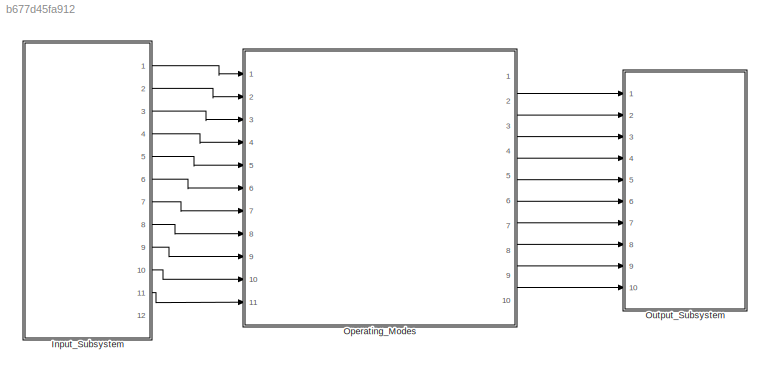
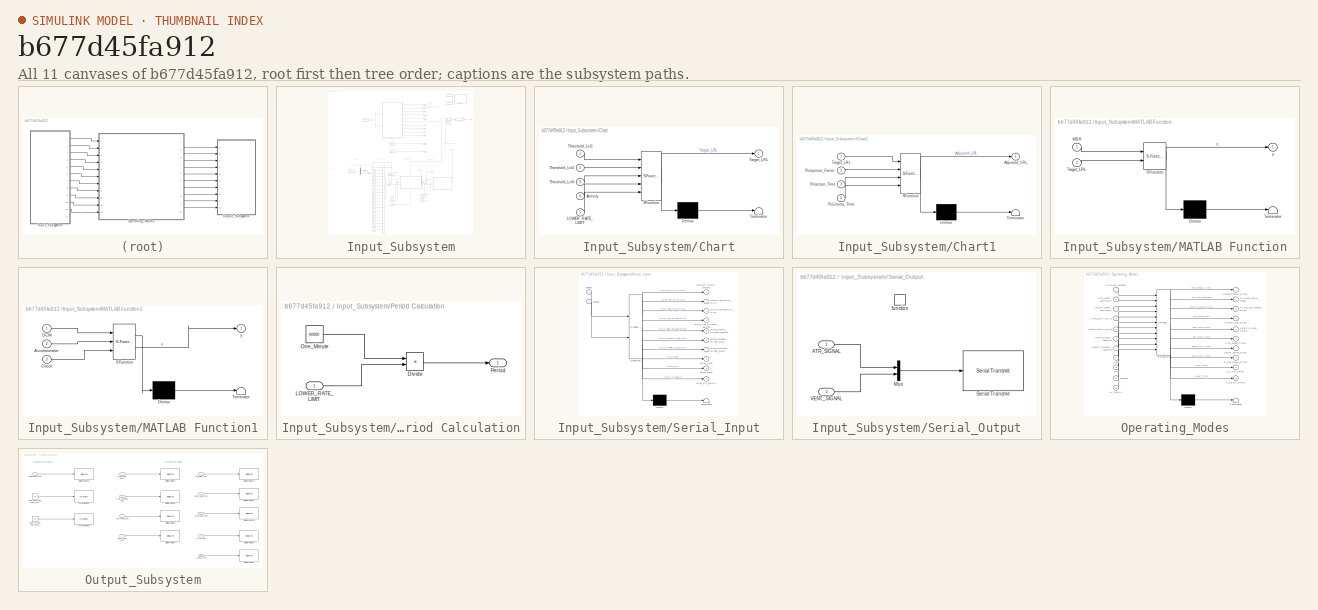
[diagram: thumbnail index - all 11 canvases of the model, root first then tree order]
MODEL slx_b677d45fa912
KIND model
CONFIG AbsTol = auto
CONFIG EnableMultiTasking = on
CONFIG FixedStep = 1e-3
CONFIG MaxStep = auto
CONFIG MinStep = auto
CONFIG RelTol = 1e-3
CONFIG SampleTimeConstraint = Unconstrained
CONFIG Solver = FixedStepAuto
CONFIG SolverName = FixedStepAuto
CONFIG StartTime = 0.0
CONFIG StopTime = 10.0
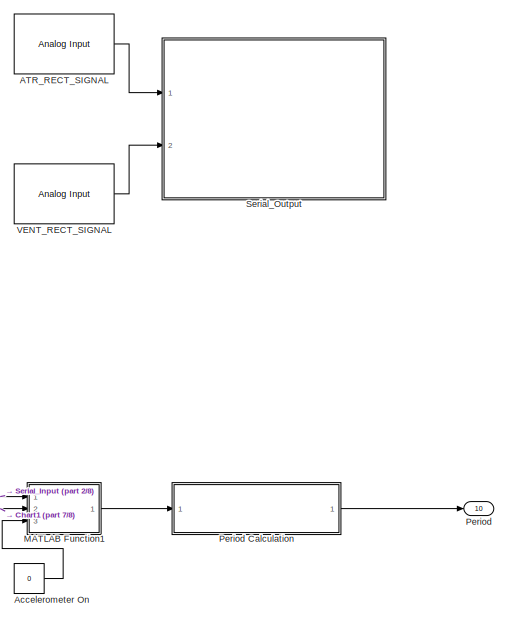
[diagram: Input_Subsystem - part 1/8, top right region]
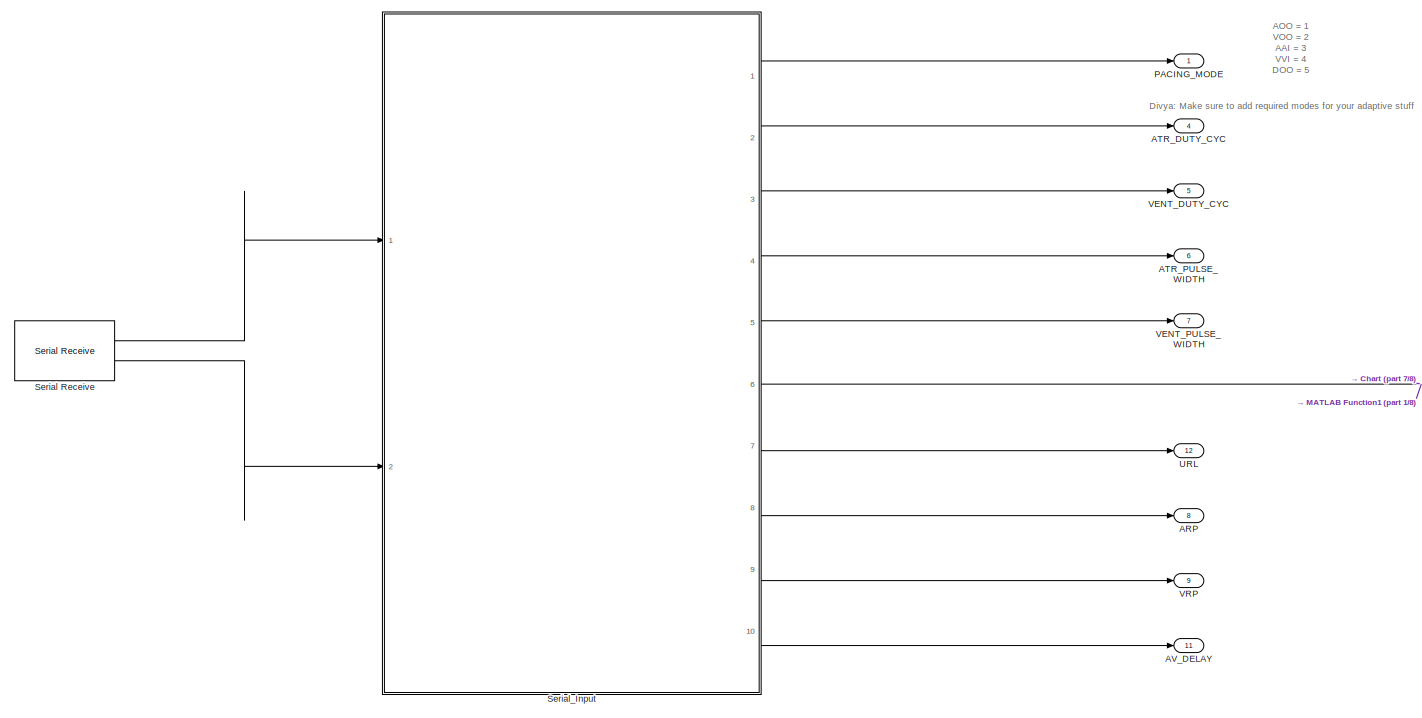
[diagram: Input_Subsystem - part 2/8, top center region]
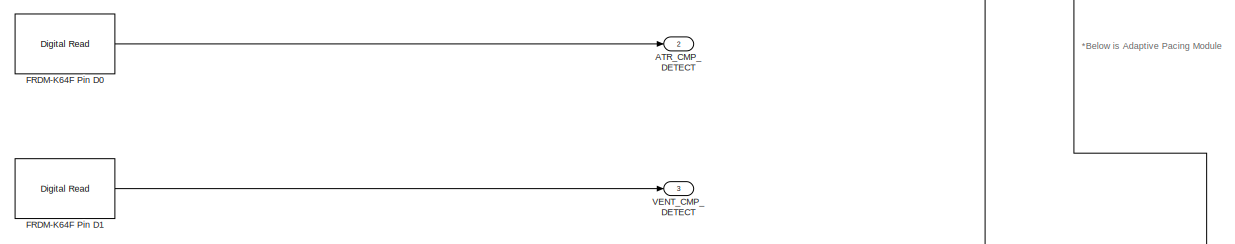
[diagram: Input_Subsystem - part 3/8, central region]
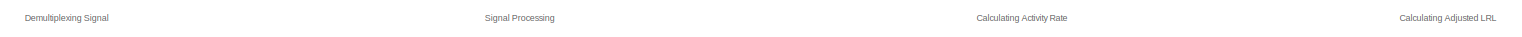
[diagram: Input_Subsystem - part 4/8, central region]
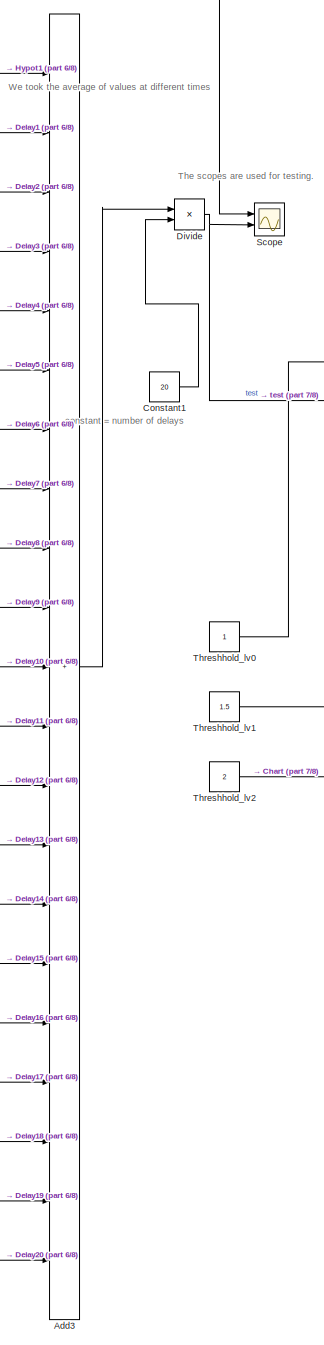
[diagram: Input_Subsystem - part 5/8, bottom center region]
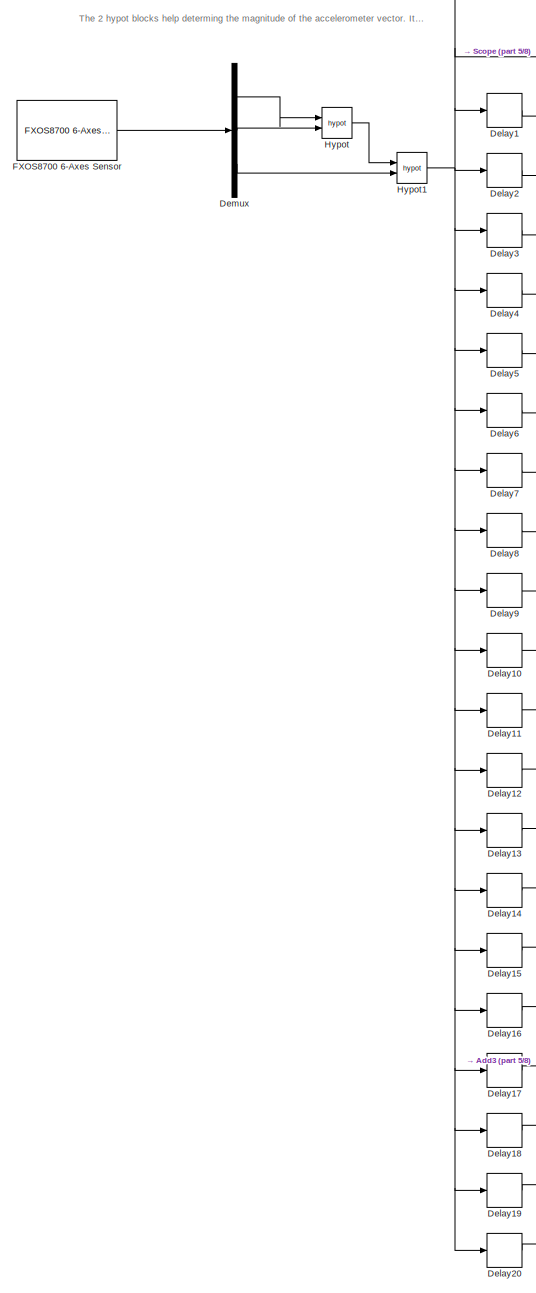
[diagram: Input_Subsystem - part 6/8, bottom left region]
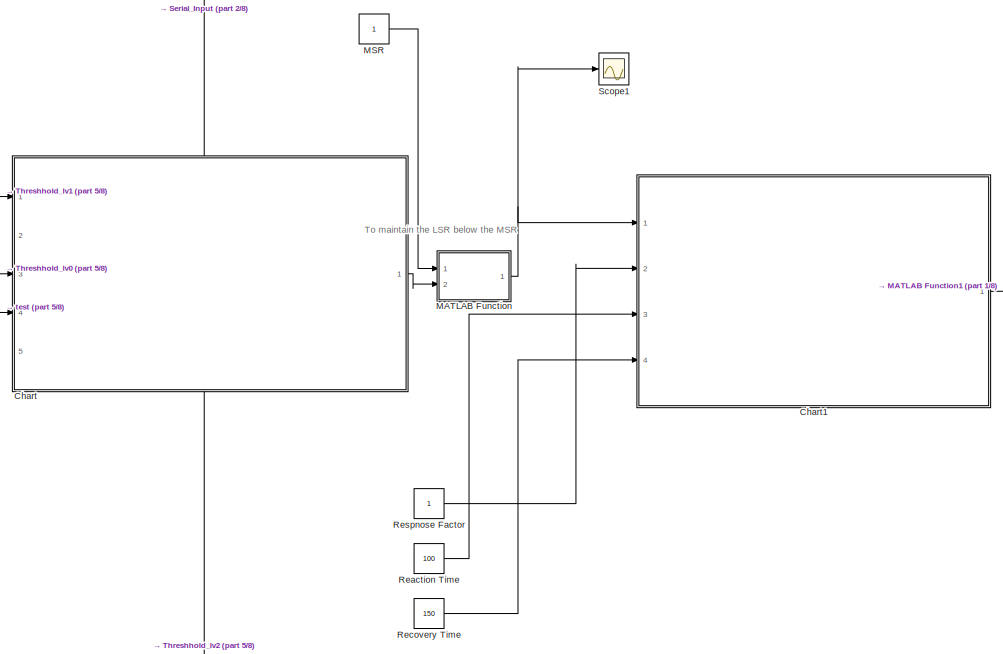
[diagram: Input_Subsystem - part 7/8, middle right region]
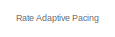
[diagram: Input_Subsystem - part 8/8, middle left region]
BLOCK [SubSystem] Input_Subsystem
  Ports = [0, 12]
  RequestExecContextInheritance = off
BLOCK [Outport] Input_Subsystem/ARP
  Port = 8
BLOCK [Outport] Input_Subsystem/ATR_CMP_DETECT
  Port = 2
BLOCK [Outport] Input_Subsystem/ATR_DUTY_CYC
  Port = 4
BLOCK [Outport] Input_Subsystem/ATR_PULSE_WIDTH 
  Port = 6
BLOCK [Reference] Input_Subsystem/ATR_RECT_SIGNAL  REF=frdmk64flib/Analog Input
  Ports = [0, 1]
  SourceBlock = frdmk64flib/Analog Input
  SourceProductBaseCode = EC_FRDM_K64F
  SourceType = freedomk64f.AnalogInput
BLOCK [Outport] Input_Subsystem/AV_DELAY
  Port = 11
BLOCK [Constant] Input_Subsystem/Accelerometer On
  Value = 0
BLOCK [Sum] Input_Subsystem/Add3
  IconShape = rectangular
  Inputs = +++++++++++++++++++++
  Ports = [21, 1]
BLOCK [SubSystem] Input_Subsystem/Chart
  ErrorFcn = Stateflow.Translate.translate
  PermitHierarchicalResolution = ExplicitOnly
  PortSchema = {"entries":[{"content":{"sides":[{"content":{"connectorIds":["In4","In3","In1"]},"type":"ConnectorPlacement.EquallySpacedRectSide","uuid":"4cb2c1a3-7832-42b2-9b4d-c3890044bf68"},{"content":{"connectorIds":["Out1"],"side":"RIGHT"},"type":"ConnectorPlacement.EquallySpacedRectSide","uuid":"b75defaf-0423-434a-ad80-75ff250baeb0"},{"content":{"connectorIds":["In5"],"side":"TOP"},"type":"ConnectorPlaceme...<+408ch>
  Ports = [5, 1]
  RequestExecContextInheritance = off
  SFBlockType = Chart
  TreatAsAtomicUnit = on
BLOCK [Demux] Input_Subsystem/Chart/ Demux 
  Outputs = 1
  Ports = [1, 1]
BLOCK [S-Function] Input_Subsystem/Chart/ SFunction 
  EnableBusSupport = on
  FunctionName = sf_sfun
  PortCounts = [5 2]
  Ports = [5, 2]
  SFcnIsStateOwnerBlock = off
  SFunctionDeploymentMode = off
  Tag = Stateflow S-Function 2
BLOCK [Terminator] Input_Subsystem/Chart/ Terminator 
BLOCK [Inport] Input_Subsystem/Chart/Activity
  Port = 4
BLOCK [Inport] Input_Subsystem/Chart/LOWER_RATE_LIMIT
  Port = 5
BLOCK [Outport] Input_Subsystem/Chart/Target_LRL
BLOCK [Inport] Input_Subsystem/Chart/Threshold_Lvl0
  Port = 3
BLOCK [Inport] Input_Subsystem/Chart/Threshold_Lvl1
BLOCK [Inport] Input_Subsystem/Chart/Threshold_Lvl2
  Port = 2
BLOCK [SubSystem] Input_Subsystem/Chart1
  ErrorFcn = Stateflow.Translate.translate
  PermitHierarchicalResolution = ExplicitOnly
  Ports = [4, 1]
  RequestExecContextInheritance = off
  SFBlockType = Chart
  TreatAsAtomicUnit = on
BLOCK [Demux] Input_Subsystem/Chart1/ Demux 
  Outputs = 1
  Ports = [1, 1]
BLOCK [S-Function] Input_Subsystem/Chart1/ SFunction 
  EnableBusSupport = on
  FunctionName = sf_sfun
  PortCounts = [4 2]
  Ports = [4, 2]
  SFcnIsStateOwnerBlock = off
  SFunctionDeploymentMode = off
  Tag = Stateflow S-Function 4
BLOCK [Terminator] Input_Subsystem/Chart1/ Terminator 
BLOCK [Outport] Input_Subsystem/Chart1/Adjusted_LRL
BLOCK [Inport] Input_Subsystem/Chart1/Reaction_Time
  Port = 3
BLOCK [Inport] Input_Subsystem/Chart1/Recovery_Time
  Port = 4
BLOCK [Inport] Input_Subsystem/Chart1/Response_Factor
  Port = 2
BLOCK [Inport] Input_Subsystem/Chart1/Target_LRL
BLOCK [Constant] Input_Subsystem/Constant1
  Value = 20
BLOCK [Delay] Input_Subsystem/Delay1
  DelayLength = 1
  InputPortMap = u0
  Ports = [1, 1]
BLOCK [Delay] Input_Subsystem/Delay10
  DelayLength = 10
  InputPortMap = u0
  Ports = [1, 1]
BLOCK [Delay] Input_Subsystem/Delay11
  DelayLength = 11
  InputPortMap = u0
  Ports = [1, 1]
BLOCK [Delay] Input_Subsystem/Delay12
  DelayLength = 12
  InputPortMap = u0
  Ports = [1, 1]
BLOCK [Delay] Input_Subsystem/Delay13
  DelayLength = 13
  InputPortMap = u0
  Ports = [1, 1]
BLOCK [Delay] Input_Subsystem/Delay14
  DelayLength = 14
  InputPortMap = u0
  Ports = [1, 1]
BLOCK [Delay] Input_Subsystem/Delay15
  DelayLength = 15
  InputPortMap = u0
  Ports = [1, 1]
BLOCK [Delay] Input_Subsystem/Delay16
  DelayLength = 16
  InputPortMap = u0
  Ports = [1, 1]
BLOCK [Delay] Input_Subsystem/Delay17
  DelayLength = 17
  InputPortMap = u0
  Ports = [1, 1]
BLOCK [Delay] Input_Subsystem/Delay18
  DelayLength = 18
  InputPortMap = u0
  Ports = [1, 1]
BLOCK [Delay] Input_Subsystem/Delay19
  DelayLength = 19
  InputPortMap = u0
  Ports = [1, 1]
BLOCK [Delay] Input_Subsystem/Delay2
  InputPortMap = u0
  Ports = [1, 1]
BLOCK [Delay] Input_Subsystem/Delay20
  DelayLength = 20
  InputPortMap = u0
  Ports = [1, 1]
BLOCK [Delay] Input_Subsystem/Delay3
  DelayLength = 3
  InputPortMap = u0
  Ports = [1, 1]
BLOCK [Delay] Input_Subsystem/Delay4
  DelayLength = 4
  InputPortMap = u0
  Ports = [1, 1]
BLOCK [Delay] Input_Subsystem/Delay5
  DelayLength = 5
  InputPortMap = u0
  Ports = [1, 1]
BLOCK [Delay] Input_Subsystem/Delay6
  DelayLength = 6
  InputPortMap = u0
  Ports = [1, 1]
BLOCK [Delay] Input_Subsystem/Delay7
  DelayLength = 7
  InputPortMap = u0
  Ports = [1, 1]
BLOCK [Delay] Input_Subsystem/Delay8
  DelayLength = 8
  InputPortMap = u0
  Ports = [1, 1]
BLOCK [Delay] Input_Subsystem/Delay9
  DelayLength = 9
  InputPortMap = u0
  Ports = [1, 1]
BLOCK [Demux] Input_Subsystem/Demux
  Outputs = 3
  Ports = [1, 3]
BLOCK [Product] Input_Subsystem/Divide
  Inputs = */
  Ports = [2, 1]
BLOCK [Reference] Input_Subsystem/FRDM-K64F Pin D0  REF=frdmk64flib/Digital Read
  Ports = [0, 1]
  SourceBlock = frdmk64flib/Digital Read
  SourceProductBaseCode = EC_FRDM_K64F
  SourceType = freedomk64f.DigitalRead
BLOCK [Reference] Input_Subsystem/FRDM-K64F Pin D1  REF=frdmk64flib/Digital Read
  Ports = [0, 1]
  SourceBlock = frdmk64flib/Digital Read
  SourceProductBaseCode = EC_FRDM_K64F
  SourceType = freedomk64f.DigitalRead
BLOCK [Reference] Input_Subsystem/FXOS8700 6-Axes Sensor  REF=frdmk64flib/FXOS8700 6-Axes Sensor
  Ports = [0, 1]
  SourceBlock = frdmk64flib/FXOS8700 6-Axes Sensor
  SourceProductBaseCode = EC_FRDM_K64F
  SourceType = freedomk64f.fxos8700
BLOCK [Math] Input_Subsystem/Hypot
  Operator = hypot
  Ports = [2, 1]
BLOCK [Math] Input_Subsystem/Hypot1
  Operator = hypot
  Ports = [2, 1]
BLOCK [SubSystem] Input_Subsystem/MATLAB Function
  ErrorFcn = Stateflow.Translate.translate
  PermitHierarchicalResolution = ExplicitOnly
  Ports = [2, 1]
  RequestExecContextInheritance = off
  SFBlockType = MATLAB Function
  TreatAsAtomicUnit = on
BLOCK [Demux] Input_Subsystem/MATLAB Function/ Demux 
  Outputs = 1
  Ports = [1, 1]
BLOCK [S-Function] Input_Subsystem/MATLAB Function/ SFunction 
  EnableBusSupport = off
  FunctionName = sf_sfun
  PortCounts = [2 2]
  Ports = [2, 2]
  SFcnIsStateOwnerBlock = off
  SFunctionDeploymentMode = off
  Tag = Stateflow S-Function 5
BLOCK [Terminator] Input_Subsystem/MATLAB Function/ Terminator 
BLOCK [Inport] Input_Subsystem/MATLAB Function/MSR
BLOCK [Inport] Input_Subsystem/MATLAB Function/Target_LRL
  Port = 2
BLOCK [Outport] Input_Subsystem/MATLAB Function/y
BLOCK [SubSystem] Input_Subsystem/MATLAB Function1
  ErrorFcn = Stateflow.Translate.translate
  PermitHierarchicalResolution = ExplicitOnly
  Ports = [3, 1]
  RequestExecContextInheritance = off
  SFBlockType = MATLAB Function
  TreatAsAtomicUnit = on
BLOCK [Demux] Input_Subsystem/MATLAB Function1/ Demux 
  Outputs = 1
  Ports = [1, 1]
BLOCK [S-Function] Input_Subsystem/MATLAB Function1/ SFunction 
  EnableBusSupport = off
  FunctionName = sf_sfun
  PortCounts = [3 2]
  Ports = [3, 2]
  SFcnIsStateOwnerBlock = off
  SFunctionDeploymentMode = off
  Tag = Stateflow S-Function 6
BLOCK [Terminator] Input_Subsystem/MATLAB Function1/ Terminator 
BLOCK [Inport] Input_Subsystem/MATLAB Function1/Accelerometer
  Port = 2
BLOCK [Inport] Input_Subsystem/MATLAB Function1/Check
  Port = 3
BLOCK [Inport] Input_Subsystem/MATLAB Function1/DCM
BLOCK [Outport] Input_Subsystem/MATLAB Function1/y
BLOCK [Constant] Input_Subsystem/MSR
BLOCK [Outport] Input_Subsystem/PACING_MODE
BLOCK [Outport] Input_Subsystem/Period 
  Port = 10
BLOCK [SubSystem] Input_Subsystem/Period Calculation
  Ports = [1, 1]
  RequestExecContextInheritance = off
BLOCK [Product] Input_Subsystem/Period Calculation/Divide
  Inputs = */
  Ports = [2, 1]
BLOCK [Inport] Input_Subsystem/Period Calculation/LOWER_RATE_LIMIT
BLOCK [Constant] Input_Subsystem/Period Calculation/One_Minute
  Value = 60000
BLOCK [Outport] Input_Subsystem/Period Calculation/Period
BLOCK [Constant] Input_Subsystem/Reaction Time
  Value = 100
BLOCK [Constant] Input_Subsystem/Recovery Time
  Value = 150
BLOCK [Constant] Input_Subsystem/Respnose Factor
BLOCK [Scope] Input_Subsystem/Scope
  Floating = off
  NumInputPorts = 2
  Ports = [2]
  ScopeSpecificationString = Simulink.scopes.TimeScopeBlockCfg('CurrentConfiguration', extmgr.ConfigurationSet(extmgr.Configuration('Core','General UI',true),extmgr.Configuration('Core','Source UI',true),extmgr.Configuration('Sources','WiredSimulink',true),extmgr.Configuration('Visuals','Time Domain',true,'SerializedDisplays',{struct('MinYLimReal','0.04721','MaxYLimReal','2.9717','YLabelReal','','MinYLimMag','0.04721','MaxYLi...<+1399ch>
BLOCK [Scope] Input_Subsystem/Scope1
  Floating = off
  NumInputPorts = 1
  Ports = [1]
  ScopeSpecificationString = Simulink.scopes.TimeScopeBlockCfg('CurrentConfiguration', extmgr.ConfigurationSet(extmgr.Configuration('Core','General UI',true),extmgr.Configuration('Core','Source UI',true),extmgr.Configuration('Sources','WiredSimulink',true,'DataLoggingVariableName','ScopeData1'),extmgr.Configuration('Visuals','Time Domain',true,'SerializedDisplays',{struct('MinYLimReal','-8.75','MaxYLimReal','78.75','YLabelRea...<+1407ch>
BLOCK [Reference] Input_Subsystem/Serial Receive  REF=frdmk64flib/Serial Receive
  Ports = [0, 2]
  SourceBlock = frdmk64flib/Serial Receive
  SourceProductBaseCode = EC_FRDM_K64F
  SourceType = freedomk64f.SCIRead
BLOCK [SubSystem] Input_Subsystem/Serial_Input
  ErrorFcn = Stateflow.Translate.translate
  PermitHierarchicalResolution = ExplicitOnly
  Ports = [2, 10]
  RequestExecContextInheritance = off
  SFBlockType = Chart
  TreatAsAtomicUnit = on
BLOCK [Demux] Input_Subsystem/Serial_Input/ Demux 
  Outputs = 1
  Ports = [1, 1]
BLOCK [S-Function] Input_Subsystem/Serial_Input/ SFunction 
  EnableBusSupport = off
  FunctionName = sf_sfun
  PortCounts = [2 11]
  Ports = [2, 11]
  SFcnIsStateOwnerBlock = off
  SFunctionDeploymentMode = off
  Tag = Stateflow S-Function 1
BLOCK [Terminator] Input_Subsystem/Serial_Input/ Terminator 
BLOCK [Outport] Input_Subsystem/Serial_Input/DCM_ARP
  Port = 8
BLOCK [Outport] Input_Subsystem/Serial_Input/DCM_ATR_DUTY_CYC
  Port = 2
BLOCK [Outport] Input_Subsystem/Serial_Input/DCM_ATR_PULSE_WIDTH
  Port = 4
BLOCK [Outport] Input_Subsystem/Serial_Input/DCM_AV_DELAY
  Port = 10
BLOCK [Outport] Input_Subsystem/Serial_Input/DCM_LOWER_RATE_LIMIT
  Port = 6
BLOCK [Outport] Input_Subsystem/Serial_Input/DCM_PACING_MODE
BLOCK [Outport] Input_Subsystem/Serial_Input/DCM_UPPER_RATE_LIMIT
  Port = 7
BLOCK [Outport] Input_Subsystem/Serial_Input/DCM_VENT_DUTY_CYC
  Port = 3
BLOCK [Outport] Input_Subsystem/Serial_Input/DCM_VENT_PULSE_WIDTH
  Port = 5
BLOCK [Outport] Input_Subsystem/Serial_Input/DCM_VRP
  Port = 9
BLOCK [Inport] Input_Subsystem/Serial_Input/rxdata
BLOCK [Inport] Input_Subsystem/Serial_Input/status
  Port = 2
BLOCK [SubSystem] Input_Subsystem/Serial_Output
  Ports = [2, 0, 0, 1]
  RequestExecContextInheritance = off
BLOCK [Inport] Input_Subsystem/Serial_Output/ATR_SIGNAL
BLOCK [Mux] Input_Subsystem/Serial_Output/Mux
  DisplayOption = bar
  Inputs = 2
  Ports = [2, 1]
BLOCK [Reference] Input_Subsystem/Serial_Output/Serial Transmit  REF=frdmk64flib/Serial Transmit
  Ports = [1]
  SourceBlock = frdmk64flib/Serial Transmit
  SourceProductBaseCode = EC_FRDM_K64F
  SourceType = freedomk64f.SCIWrite
BLOCK [Inport] Input_Subsystem/Serial_Output/VENT_SIGNAL
  Port = 2
BLOCK [TriggerPort] Input_Subsystem/Serial_Output/function
  FunctionName = send_params
  IsSimulinkFunction = on
  Ports = []
  StatesWhenEnabling = held
  TriggerType = function-call
  VariantControl = Variant
BLOCK [Constant] Input_Subsystem/Threshhold_lv0
  OutDataTypeStr = double
BLOCK [Constant] Input_Subsystem/Threshhold_lv1
  Value = 1.5
BLOCK [Constant] Input_Subsystem/Threshhold_lv2
  Value = 2
BLOCK [Outport] Input_Subsystem/URL
  Port = 12
BLOCK [Outport] Input_Subsystem/VENT_CMP_DETECT
  Port = 3
BLOCK [Outport] Input_Subsystem/VENT_DUTY_CYC
  Port = 5
BLOCK [Outport] Input_Subsystem/VENT_PULSE_WIDTH 
  Port = 7
BLOCK [Reference] Input_Subsystem/VENT_RECT_SIGNAL  REF=frdmk64flib/Analog Input
  Ports = [0, 1]
  SourceBlock = frdmk64flib/Analog Input
  SourceProductBaseCode = EC_FRDM_K64F
  SourceType = freedomk64f.AnalogInput
BLOCK [Outport] Input_Subsystem/VRP
  Port = 9
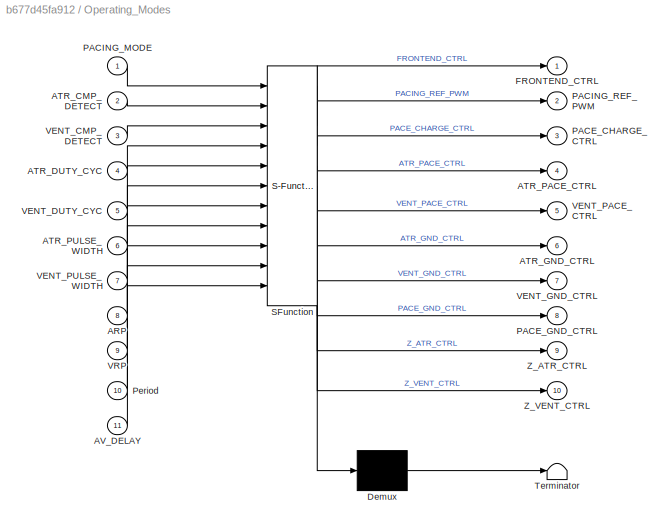
BLOCK [SubSystem] Operating_Modes
  ErrorFcn = Stateflow.Translate.translate
  PermitHierarchicalResolution = ExplicitOnly
  Ports = [11, 10]
  RequestExecContextInheritance = off
  SFBlockType = Chart
  TreatAsAtomicUnit = on
BLOCK [Demux] Operating_Modes/ Demux 
  Outputs = 1
  Ports = [1, 1]
BLOCK [S-Function] Operating_Modes/ SFunction 
  EnableBusSupport = on
  FunctionName = sf_sfun
  PortCounts = [11 11]
  Ports = [11, 11]
  SFcnIsStateOwnerBlock = off
  SFunctionDeploymentMode = off
  Tag = Stateflow S-Function 3
BLOCK [Terminator] Operating_Modes/ Terminator 
BLOCK [Inport] Operating_Modes/ARP
  Port = 8
BLOCK [Inport] Operating_Modes/ATR_CMP_DETECT
  Port = 2
BLOCK [Inport] Operating_Modes/ATR_DUTY_CYC
  Port = 4
BLOCK [Outport] Operating_Modes/ATR_GND_CTRL
  Port = 6
BLOCK [Outport] Operating_Modes/ATR_PACE_CTRL
  Port = 4
BLOCK [Inport] Operating_Modes/ATR_PULSE_WIDTH
  Port = 6
BLOCK [Inport] Operating_Modes/AV_DELAY
  Port = 11
BLOCK [Outport] Operating_Modes/FRONTEND_CTRL
BLOCK [Outport] Operating_Modes/PACE_CHARGE_CTRL
  Port = 3
BLOCK [Outport] Operating_Modes/PACE_GND_CTRL
  Port = 8
BLOCK [Inport] Operating_Modes/PACING_MODE
BLOCK [Outport] Operating_Modes/PACING_REF_PWM
  Port = 2
BLOCK [Inport] Operating_Modes/Period
  Port = 10
BLOCK [Inport] Operating_Modes/VENT_CMP_DETECT
  Port = 3
BLOCK [Inport] Operating_Modes/VENT_DUTY_CYC
  Port = 5
BLOCK [Outport] Operating_Modes/VENT_GND_CTRL
  Port = 7
BLOCK [Outport] Operating_Modes/VENT_PACE_CTRL
  Port = 5
BLOCK [Inport] Operating_Modes/VENT_PULSE_WIDTH
  Port = 7
BLOCK [Inport] Operating_Modes/VRP
  Port = 9
BLOCK [Outport] Operating_Modes/Z_ATR_CTRL
  Port = 9
BLOCK [Outport] Operating_Modes/Z_VENT_CTRL
  Port = 10
BLOCK [SubSystem] Output_Subsystem
  Ports = [10]
  RequestExecContextInheritance = off
BLOCK [Inport] Output_Subsystem/ATR_GND_CTRL
  Port = 6
BLOCK [Inport] Output_Subsystem/ATR_PACE_CTRL
  Port = 4
BLOCK [Constant] Output_Subsystem/DCM_ATR_CMP_REF_PWM
  Value = 50
BLOCK [Constant] Output_Subsystem/DCM_VENT_CMP_REF_PWM
  Value = 50
BLOCK [Reference] Output_Subsystem/Digital Write to D10  REF=frdmk64flib/Digital Write
  Ports = [1]
  SourceBlock = frdmk64flib/Digital Write
  SourceProductBaseCode = EC_FRDM_K64F
  SourceType = freedomk64f.DigitalWrite
BLOCK [Reference] Output_Subsystem/Digital Write to D11  REF=frdmk64flib/Digital Write
  Ports = [1]
  SourceBlock = frdmk64flib/Digital Write
  SourceProductBaseCode = EC_FRDM_K64F
  SourceType = freedomk64f.DigitalWrite
BLOCK [Reference] Output_Subsystem/Digital Write to D12  REF=frdmk64flib/Digital Write
  Ports = [1]
  SourceBlock = frdmk64flib/Digital Write
  SourceProductBaseCode = EC_FRDM_K64F
  SourceType = freedomk64f.DigitalWrite
BLOCK [Reference] Output_Subsystem/Digital Write to D13  REF=frdmk64flib/Digital Write
  Ports = [1]
  SourceBlock = frdmk64flib/Digital Write
  SourceProductBaseCode = EC_FRDM_K64F
  SourceType = freedomk64f.DigitalWrite
BLOCK [Reference] Output_Subsystem/Digital Write to D2  REF=frdmk64flib/Digital Write
  Ports = [1]
  SourceBlock = frdmk64flib/Digital Write
  SourceProductBaseCode = EC_FRDM_K64F
  SourceType = freedomk64f.DigitalWrite
BLOCK [Reference] Output_Subsystem/Digital Write to D4  REF=frdmk64flib/Digital Write
  Ports = [1]
  SourceBlock = frdmk64flib/Digital Write
  SourceProductBaseCode = EC_FRDM_K64F
  SourceType = freedomk64f.DigitalWrite
BLOCK [Reference] Output_Subsystem/Digital Write to D5  REF=frdmk64flib/Digital Write
  Ports = [1]
  SourceBlock = frdmk64flib/Digital Write
  SourceProductBaseCode = EC_FRDM_K64F
  SourceType = freedomk64f.DigitalWrite
BLOCK [Reference] Output_Subsystem/Digital Write to D7  REF=frdmk64flib/Digital Write
  Ports = [1]
  SourceBlock = frdmk64flib/Digital Write
  SourceProductBaseCode = EC_FRDM_K64F
  SourceType = freedomk64f.DigitalWrite
BLOCK [Reference] Output_Subsystem/Digital Write to D8  REF=frdmk64flib/Digital Write
  Ports = [1]
  SourceBlock = frdmk64flib/Digital Write
  SourceProductBaseCode = EC_FRDM_K64F
  SourceType = freedomk64f.DigitalWrite
BLOCK [Reference] Output_Subsystem/Digital Write to D9  REF=frdmk64flib/Digital Write
  Ports = [1]
  SourceBlock = frdmk64flib/Digital Write
  SourceProductBaseCode = EC_FRDM_K64F
  SourceType = freedomk64f.DigitalWrite
BLOCK [Inport] Output_Subsystem/FRONTEND_CTRL
BLOCK [Inport] Output_Subsystem/PACE_CHARGE_CTRL
  Port = 3
BLOCK [Inport] Output_Subsystem/PACE_GND_CTRL
  Port = 8
BLOCK [Inport] Output_Subsystem/PACING_REF_PWM
  Port = 2
BLOCK [Reference] Output_Subsystem/PWM Output to D3  REF=frdmk64flib/PWM Output
  Ports = [1]
  SourceBlock = frdmk64flib/PWM Output
  SourceProductBaseCode = EC_FRDM_K64F
  SourceType = freedomk64f.PWMOutput
BLOCK [Reference] Output_Subsystem/PWM Output to D6  REF=frdmk64flib/PWM Output
  Ports = [1]
  SourceBlock = frdmk64flib/PWM Output
  SourceProductBaseCode = EC_FRDM_K64F
  SourceType = freedomk64f.PWMOutput
BLOCK [Inport] Output_Subsystem/VENT_GND_CTRL
  Port = 7
BLOCK [Inport] Output_Subsystem/VENT_PACE_CTRL
  Port = 5
BLOCK [Inport] Output_Subsystem/Z_ATR_CTRL
  Port = 9
BLOCK [Inport] Output_Subsystem/Z_VENT_CTRL
  Port = 10
ANNOTATION Input_Subsystem: *Below is Adaptive Pacing Module
ANNOTATION Input_Subsystem: Rate Adaptive Pacing
ANNOTATION Input_Subsystem: Divya: Make sure to add required modes for your adaptive stuff
ANNOTATION Input_Subsystem: AOO = 1 VOO = 2 AAI = 3 VVI = 4 DOO = 5
ANNOTATION Input_Subsystem: Calculating Activity Rate
ANNOTATION Input_Subsystem: Calculating Adjusted LRL
ANNOTATION Input_Subsystem: Demultiplexing Signal
ANNOTATION Input_Subsystem: Signal Processing
ANNOTATION Input_Subsystem: The 2 hypot blocks help determing the magnitude of the accelerometer vector. It uses the equation |m| = sqrt(x^2+y^2+z^2)
ANNOTATION Input_Subsystem: The scopes are used for testing.
ANNOTATION Input_Subsystem: To maintain the LSR below the MSR
ANNOTATION Input_Subsystem: We took the average of values at different times
ANNOTATION Input_Subsystem: constant = number of delays
ANNOTATION Output_Subsystem: AV Pacing Circuitry Outputs
ANNOTATION Output_Subsystem: AV Sensing Circuitry Outputs
LINE Input_Subsystem/ATR_RECT_SIGNAL:1 -> Input_Subsystem/Serial_Output:1
LINE Input_Subsystem/Accelerometer On:1 -> Input_Subsystem/MATLAB Function1:3
LINE Input_Subsystem/Add3:1 -> Input_Subsystem/Divide:1
LINE Input_Subsystem/Chart1:1 -> Input_Subsystem/MATLAB Function1:2
LINE Input_Subsystem/Chart:1 -> Input_Subsystem/MATLAB Function:2
LINE Input_Subsystem/Constant1:1 -> Input_Subsystem/Divide:2
LINE Input_Subsystem/Delay10:1 -> Input_Subsystem/Add3:11
LINE Input_Subsystem/Delay11:1 -> Input_Subsystem/Add3:12
LINE Input_Subsystem/Delay12:1 -> Input_Subsystem/Add3:13
LINE Input_Subsystem/Delay13:1 -> Input_Subsystem/Add3:14
LINE Input_Subsystem/Delay14:1 -> Input_Subsystem/Add3:15
LINE Input_Subsystem/Delay15:1 -> Input_Subsystem/Add3:16
LINE Input_Subsystem/Delay16:1 -> Input_Subsystem/Add3:17
LINE Input_Subsystem/Delay17:1 -> Input_Subsystem/Add3:18
LINE Input_Subsystem/Delay18:1 -> Input_Subsystem/Add3:19
LINE Input_Subsystem/Delay19:1 -> Input_Subsystem/Add3:20
LINE Input_Subsystem/Delay1:1 -> Input_Subsystem/Add3:2
LINE Input_Subsystem/Delay20:1 -> Input_Subsystem/Add3:21
LINE Input_Subsystem/Delay2:1 -> Input_Subsystem/Add3:3
LINE Input_Subsystem/Delay3:1 -> Input_Subsystem/Add3:4
LINE Input_Subsystem/Delay4:1 -> Input_Subsystem/Add3:5
LINE Input_Subsystem/Delay5:1 -> Input_Subsystem/Add3:6
LINE Input_Subsystem/Delay6:1 -> Input_Subsystem/Add3:7
LINE Input_Subsystem/Delay7:1 -> Input_Subsystem/Add3:8
LINE Input_Subsystem/Delay8:1 -> Input_Subsystem/Add3:9
LINE Input_Subsystem/Delay9:1 -> Input_Subsystem/Add3:10
LINE Input_Subsystem/Demux:1 -> Input_Subsystem/Hypot:1
LINE Input_Subsystem/Demux:2 -> Input_Subsystem/Hypot:2
LINE Input_Subsystem/Demux:3 -> Input_Subsystem/Hypot1:2
NET Input_Subsystem/Divide:1 -> Input_Subsystem/Chart:4, Input_Subsystem/Scope:2
LINE Input_Subsystem/FRDM-K64F Pin D0:1 -> Input_Subsystem/ATR_CMP_DETECT:1
LINE Input_Subsystem/FRDM-K64F Pin D1:1 -> Input_Subsystem/VENT_CMP_DETECT:1
LINE Input_Subsystem/FXOS8700 6-Axes Sensor:1 -> Input_Subsystem/Demux:1
NET Input_Subsystem/Hypot1:1 -> Input_Subsystem/Add3:1, Input_Subsystem/Delay10:1, Input_Subsystem/Delay11:1, Input_Subsystem/Delay12:1, Input_Subsystem/Delay13:1, Input_Subsystem/Delay14:1, Input_Subsystem/Delay15:1, Input_Subsystem/Delay16:1, Input_Subsystem/Delay17:1, Input_Subsystem/Delay18:1, Input_Subsystem/Delay19:1, Input_Subsystem/Delay1:1, Input_Subsystem/Delay20:1, Input_Subsystem/Delay2:1, Input_Subsystem/Delay3:1, Input_Subsystem/Delay4:1, Input_Subsystem/Delay5:1, Input_Subsystem/Delay6:1, Input_Subsystem/Delay7:1, Input_Subsystem/Delay8:1, Input_Subsystem/Delay9:1, Input_Subsystem/Scope:1
LINE Input_Subsystem/Hypot:1 -> Input_Subsystem/Hypot1:1
LINE Input_Subsystem/MATLAB Function1:1 -> Input_Subsystem/Period Calculation:1
NET Input_Subsystem/MATLAB Function:1 -> Input_Subsystem/Chart1:1, Input_Subsystem/Scope1:1
LINE Input_Subsystem/MSR:1 -> Input_Subsystem/MATLAB Function:1
LINE Input_Subsystem/Period Calculation/Divide:1 -> Input_Subsystem/Period Calculation/Period:1
LINE Input_Subsystem/Period Calculation/LOWER_RATE_LIMIT:1 -> Input_Subsystem/Period Calculation/Divide:2
LINE Input_Subsystem/Period Calculation/One_Minute:1 -> Input_Subsystem/Period Calculation/Divide:1
LINE Input_Subsystem/Period Calculation:1 -> Input_Subsystem/Period :1
LINE Input_Subsystem/Reaction Time:1 -> Input_Subsystem/Chart1:3
LINE Input_Subsystem/Recovery Time:1 -> Input_Subsystem/Chart1:4
LINE Input_Subsystem/Respnose Factor:1 -> Input_Subsystem/Chart1:2
LINE Input_Subsystem/Serial Receive:1 -> Input_Subsystem/Serial_Input:1
LINE Input_Subsystem/Serial Receive:2 -> Input_Subsystem/Serial_Input:2
LINE Input_Subsystem/Serial_Input:1 -> Input_Subsystem/PACING_MODE:1
LINE Input_Subsystem/Serial_Input:10 -> Input_Subsystem/AV_DELAY:1
LINE Input_Subsystem/Serial_Input:2 -> Input_Subsystem/ATR_DUTY_CYC:1
LINE Input_Subsystem/Serial_Input:3 -> Input_Subsystem/VENT_DUTY_CYC:1
LINE Input_Subsystem/Serial_Input:4 -> Input_Subsystem/ATR_PULSE_WIDTH :1
LINE Input_Subsystem/Serial_Input:5 -> Input_Subsystem/VENT_PULSE_WIDTH :1
NET Input_Subsystem/Serial_Input:6 -> Input_Subsystem/Chart:5, Input_Subsystem/MATLAB Function1:1
LINE Input_Subsystem/Serial_Input:7 -> Input_Subsystem/URL:1
LINE Input_Subsystem/Serial_Input:8 -> Input_Subsystem/ARP:1
LINE Input_Subsystem/Serial_Input:9 -> Input_Subsystem/VRP:1
LINE Input_Subsystem/Serial_Output/ATR_SIGNAL:1 -> Input_Subsystem/Serial_Output/Mux:1
LINE Input_Subsystem/Serial_Output/Mux:1 -> Input_Subsystem/Serial_Output/Serial Transmit:1
LINE Input_Subsystem/Serial_Output/VENT_SIGNAL:1 -> Input_Subsystem/Serial_Output/Mux:2
LINE Input_Subsystem/Threshhold_lv0:1 -> Input_Subsystem/Chart:3
LINE Input_Subsystem/Threshhold_lv1:1 -> Input_Subsystem/Chart:1
LINE Input_Subsystem/Threshhold_lv2:1 -> Input_Subsystem/Chart:2
LINE Input_Subsystem/VENT_RECT_SIGNAL:1 -> Input_Subsystem/Serial_Output:2
LINE Input_Subsystem:1 -> Operating_Modes:1
LINE Input_Subsystem:10 -> Operating_Modes:10
LINE Input_Subsystem:11 -> Operating_Modes:11
LINE Input_Subsystem:2 -> Operating_Modes:2
LINE Input_Subsystem:3 -> Operating_Modes:3
LINE Input_Subsystem:4 -> Operating_Modes:4
LINE Input_Subsystem:5 -> Operating_Modes:5
LINE Input_Subsystem:6 -> Operating_Modes:6
LINE Input_Subsystem:7 -> Operating_Modes:7
LINE Input_Subsystem:8 -> Operating_Modes:8
LINE Input_Subsystem:9 -> Operating_Modes:9
LINE Operating_Modes:1 -> Output_Subsystem:1
LINE Operating_Modes:10 -> Output_Subsystem:10
LINE Operating_Modes:2 -> Output_Subsystem:2
LINE Operating_Modes:3 -> Output_Subsystem:3
LINE Operating_Modes:4 -> Output_Subsystem:4
LINE Operating_Modes:5 -> Output_Subsystem:5
LINE Operating_Modes:6 -> Output_Subsystem:6
LINE Operating_Modes:7 -> Output_Subsystem:7
LINE Operating_Modes:8 -> Output_Subsystem:8
LINE Operating_Modes:9 -> Output_Subsystem:9
LINE Output_Subsystem/ATR_GND_CTRL:1 -> Output_Subsystem/Digital Write to D11:1
LINE Output_Subsystem/ATR_PACE_CTRL:1 -> Output_Subsystem/Digital Write to D8:1
LINE Output_Subsystem/DCM_ATR_CMP_REF_PWM:1 -> Output_Subsystem/PWM Output to D6:1
LINE Output_Subsystem/DCM_VENT_CMP_REF_PWM:1 -> Output_Subsystem/PWM Output to D3:1
LINE Output_Subsystem/FRONTEND_CTRL:1 -> Output_Subsystem/Digital Write to D13:1
LINE Output_Subsystem/PACE_CHARGE_CTRL:1 -> Output_Subsystem/Digital Write to D2:1
LINE Output_Subsystem/PACE_GND_CTRL:1 -> Output_Subsystem/Digital Write to D10:1
LINE Output_Subsystem/PACING_REF_PWM:1 -> Output_Subsystem/Digital Write to D5:1
LINE Output_Subsystem/VENT_GND_CTRL:1 -> Output_Subsystem/Digital Write to D12:1
LINE Output_Subsystem/VENT_PACE_CTRL:1 -> Output_Subsystem/Digital Write to D9:1
LINE Output_Subsystem/Z_ATR_CTRL:1 -> Output_Subsystem/Digital Write to D4:1
LINE Output_Subsystem/Z_VENT_CTRL:1 -> Output_Subsystem/Digital Write to D7:1
note: NET lines group one-source signal fan-out (src -> all destinations, sorted); 1:1 wires keep LINE
CHART Input_Subsystem/Serial_Input states=5 transitions=8
  STATE_LABEL "SET_PARAMS\n\nentry:\nDCM_PACING_MODE = typecast(rxdata(4), 'uint8');\nDCM_ATR_DUTY_CYC = typecast(rxdata(5), 'uint8');\nDCM_VENT_DUTY_CYC = typecast(rxdata(6), 'uint8');\nDCM_ATR_PULSE_WIDTH = typecast(rxdata(7), 'uint8');\nDCM_VENT_PULSE_WIDTH = typecast(rxdata(8), 'uint8');\nDCM_LOWER_RATE_LIMIT = typecast(rxdata(9), 'uint8');\nDCM_UPPER_RATE_LIMIT = typecast(rxdata(10), 'uint8');\nDCM_ARP = typecast(rxd...<+118ch>"
  STATE_LABEL 'This stateflow parses the serial input from the DCM and breaks it down into values to be used by the pacemaker'
  STATE_LABEL 'DEFAULT_VALUES\n\nentry:\nDCM_PACING_MODE = 1;\nDCM_ATR_DUTY_CYC  = 80;\nDCM_VENT_DUTY_CYC  = 80;\nDCM_ATR_PULSE_WIDTH  = 10;\nDCM_VENT_PULSE_WIDTH  = 10;\nDCM_LOWER_RATE_LIMIT  = 60;\nDCM_UPPER_RATE_LIMIT  = 120;\nDCM_ARP  = 250;\nDCM_VRP  = 320;\nDCM_AV_DELAY  = 150;\n'
  STATE_LABEL 'STANDBY'
  STATE_LABEL 'SEND_PARAMS\n\nentry:\nsend_param();'
CHART Input_Subsystem/Chart states=6 transitions=9
  STATE_LABEL 'S_Low\n\nentry:\nTarget_LRL = LOWER_RATE_LIMIT + 5;'
  STATE_LABEL 'The Target LRLs are calculated using restriction in the Activity.'
  STATE_LABEL 'S_Medium\n\nentry:\nTarget_LRL = LOWER_RATE_LIMIT +10;'
  STATE_LABEL 'S_Rest\n\nentry:\nTarget_LRL = LOWER_RATE_LIMIT;'
  STATE_LABEL 'S_Initial'
  STATE_LABEL 'S_Medium1\n\nentry:\nTarget_LRL = LOWER_RATE_LIMIT +15;'
CHART Operating_Modes states=15 transitions=29
  STATE_LABEL 'AAI_Pace_OFF\n%These are the pins used to charge the\n% primary capacitors without letting any\n% charge go to the heart\n% This is the charging state\nduring:\nATR_PACE_CTRL= false\nVENT_PACE_CTRL= false\nPACING_REF_PWM= ATR_DUTY_CYC\nPACE_CHARGE_CTRL= true\nPACE_GND_CTRL= true\nZ_ATR_CTRL= false\nZ_VENT_CTRL= false\nATR_GND_CTRL= true\nVENT_GND_CTRL= false\nFRONTEND_CTRL= true'
  STATE_LABEL 'AAI_Pace_ON\n% These pins are used to discharge the primary\n% capacitor into the heart and then zero our\n% voltage using the secondary capacitor.\n% This is the pacing state\nduring:\nPACE_CHARGE_CTRL= false\nPACE_GND_CTRL= true\nATR_PACE_CTRL= true\nATR_GND_CTRL= false\nZ_ATR_CTRL= false\nZ_VENT_CTRL= false\nVENT_GND_CTRL= false\nVENT_PACE_CTRL= false\nFRONTEND_CTRL= false'
  STATE_LABEL 'AAI_Pace_SENSED\n%This state is triggered after sensing a beat\n% This state will be used to incorporate the\n% refractory period as a delay\nduring:\nATR_PACE_CTRL= false\nVENT_PACE_CTRL= false\nPACE_CHARGE_CTRL= true\nPACE_GND_CTRL= true\nZ_ATR_CTRL= false\nZ_VENT_CTRL= false\nATR_GND_CTRL= true\nVENT_GND_CTRL= false\nFRONTEND_CTRL= false'
  STATE_LABEL 'VOO_Pace_OFF\n%These are the pins used to charge the\n% primary capacitors without letting any\n% charge go to the heart\n% This is the charging state\nduring:\nATR_PACE_CTRL = false\nVENT_PACE_CTRL = false\nPACING_REF_PWM =  VENT_DUTY_CYC\nPACE_CHARGE_CTRL = true\nPACE_GND_CTRL = true\nZ_ATR_CTRL = false\nZ_VENT_CTRL = false\nATR_GND_CTRL = false\nVENT_GND_CTRL = true\nFRONTEND_CTRL = false\n'
  STATE_LABEL 'VOO_Pace_ON\n% These pins are used to discharge the primary\n% capacitor into the heart and then zero our\n% voltage using the secondary capacitor.\n% This is the pacing state\nduring:\nPACE_CHARGE_CTRL = false\nPACE_GND_CTRL = true\nATR_PACE_CTRL = false\nATR_GND_CTRL = false\nZ_ATR_CTRL = false\nZ_VENT_CTRL = false\nVENT_GND_CTRL = false\nVENT_PACE_CTRL = true\nFRONTEND_CTRL = false\n'
  STATE_LABEL 'VVI_Pace_OFF\n%These are the pins used to charge the\n% primary capacitors without letting any\n% charge go to the heart\n% This is the charging state\nduring:\nATR_PACE_CTRL = false\nVENT_PACE_CTRL = false\nPACING_REF_PWM =  VENT_DUTY_CYC\nPACE_CHARGE_CTRL = true\nPACE_GND_CTRL = true\nZ_ATR_CTRL = false\nZ_VENT_CTRL = false\nATR_GND_CTRL = false\nVENT_GND_CTRL = true\nFRONTEND_CTRL = true\n'
  STATE_LABEL 'VVI_Pace_SENSED\n%This state is triggered after sensing a beat\n% This state will be used to incorporate the\n% refractory period as a delay\nduring:\nATR_PACE_CTRL = false\nVENT_PACE_CTRL = false\nPACE_CHARGE_CTRL = true\nPACE_GND_CTRL = true\nZ_ATR_CTRL = false\nZ_VENT_CTRL = false\nATR_GND_CTRL = false\nVENT_GND_CTRL = true\nFRONTEND_CTRL = false\n'
  STATE_LABEL 'VVI_Pace_ON\n% These pins are used to discharge the primary\n% capacitor into the heart and then zero our\n% voltage using the secondary capacitor.\n% This is the pacing state\nduring:\nPACE_CHARGE_CTRL = false\nPACE_GND_CTRL = true\nATR_PACE_CTRL = false\nATR_GND_CTRL = false\nZ_ATR_CTRL = false\nZ_VENT_CTRL = false\nVENT_GND_CTRL = false\nVENT_PACE_CTRL = true\nFRONTEND_CTRL = false\n'
  STATE_LABEL 'Start'
  STATE_LABEL 'AOO_Pace_OFF\n%These are the pins used to charge the\n% primary capacitors without letting any\n% charge go to the heart\n% This is the charging state\nduring:\nATR_PACE_CTRL = false\nVENT_PACE_CTRL = false\nPACING_REF_PWM = ATR_DUTY_CYC\nPACE_CHARGE_CTRL = true\nPACE_GND_CTRL = true\nZ_ATR_CTRL = false\nZ_VENT_CTRL = false\nATR_GND_CTRL = true\nVENT_GND_CTRL = false\nFRONTEND_CTRL = false'
  STATE_LABEL 'AOO_Pace_ON\n% These pins are used to discharge the primary\n% capacitor into the heart and then zero our\n% voltage using the secondary capacitor.\n% This is the pacing state\nduring:\nPACE_CHARGE_CTRL = false\nPACE_GND_CTRL = true\nATR_PACE_CTRL = true\nATR_GND_CTRL = false\nZ_ATR_CTRL = false\nZ_VENT_CTRL = false\nVENT_GND_CTRL = false\nVENT_PACE_CTRL = false\nFRONTEND_CTRL = false'
  STATE_LABEL 'DOO_ATR_Pace_OFF\n%These are the pins used to charge the\n% primary capacitors without letting any\n% charge go to the heart\n% This is the charging state\nduring:\nATR_PACE_CTRL = false\nVENT_PACE_CTRL = false\nPACING_REF_PWM = ATR_DUTY_CYC\nPACE_CHARGE_CTRL = true\nPACE_GND_CTRL = true\nZ_ATR_CTRL = false\nZ_VENT_CTRL = false\nATR_GND_CTRL = true\nVENT_GND_CTRL = false\nFRONTEND_CTRL = false'
  STATE_LABEL 'DOO_ATR_Pace_ON\n% These pins are used to discharge the primary\n% capacitor into the heart and then zero our\n% voltage using the secondary capacitor.\n% This is the pacing state\nduring:\nPACE_CHARGE_CTRL = false\nPACE_GND_CTRL = true\nATR_PACE_CTRL = true\nATR_GND_CTRL = false\nZ_ATR_CTRL = false\nZ_VENT_CTRL = false\nVENT_GND_CTRL = false\nVENT_PACE_CTRL = false\nFRONTEND_CTRL = false'
  STATE_LABEL 'DOO_VENT_Pace_OFF\n%These are the pins used to charge the\n% primary capacitors without letting any\n% charge go to the heart\n% This is the charging state\nduring:\nATR_PACE_CTRL = false\nVENT_PACE_CTRL = false\nPACING_REF_PWM =  VENT_DUTY_CYC\nPACE_CHARGE_CTRL = true\nPACE_GND_CTRL = true\nZ_ATR_CTRL = false\nZ_VENT_CTRL = false\nATR_GND_CTRL = false\nVENT_GND_CTRL = true\nFRONTEND_CTRL = false\n'
  STATE_LABEL 'DOO_VENT_Pace_ON\n% These pins are used to discharge the primary\n% capacitor into the heart and then zero our\n% voltage using the secondary capacitor.\n% This is the pacing state\nduring:\nPACE_CHARGE_CTRL = false\nPACE_GND_CTRL = true\nATR_PACE_CTRL = false\nATR_GND_CTRL = false\nZ_ATR_CTRL = false\nZ_VENT_CTRL = false\nVENT_GND_CTRL = false\nVENT_PACE_CTRL = true\nFRONTEND_CTRL = false\n'
CHART Input_Subsystem/Chart1 states=5 transitions=8
  STATE_LABEL 'Rate_Increase\n\nentry:\nAdjusted_LRL = Adjusted_LRL + Time*(Target_LRL-Adjusted_LRL)*(1-((0)/((16-Response_Factor)*Reaction_Time)))/Reaction_Time;\nTime = Time + 1;\n'
  STATE_LABEL 'Begin\nentry:\nAdjusted_LRL=Target_LRL;'
  STATE_LABEL 'Stay\nentry:\nTime = 0;'
  STATE_LABEL "** The time variable makes sure that these 2 logic blocks' running time does not exceed the reaction/recovery time, and the adjusted LRL equations are different respective to if the LRL must be increased or decreased."
  STATE_LABEL 'Rate_Decrease\n\nduring:\nAdjusted_LRL= Adjusted_LRL - Time*(Adjusted_LRL-Target_LRL)*(1-(0)/((16-Response_Factor)*Recovery_Time))/Recovery_Time;\nTime = Time + 1;\n'
CHART Input_Subsystem/MATLAB Function states=1 transitions=1
  STATE_LABEL 'eML_blk_kernel()'
  STATE_LABEL 'SCRIPT:\nfunction y = fcn(MSR, Target_LRL)\n    if Target_LRL > MSR\n        y=MSR;\n    else\n        y=Target_LRL;\n    end\n\n'
CHART Input_Subsystem/MATLAB Function1 states=1 transitions=1
  STATE_LABEL 'eML_blk_kernel()'
  STATE_LABEL 'SCRIPT:\nfunction y = fcn(DCM, Accelerometer, Check)\n    if Check == 0\n        y = DCM;\n    else\n        y = Accelerometer;\n    end\n\n'
CHART  states=0 transitions=0
CHART  states=0 transitions=0
CHART  states=0 transitions=0
CHART  states=0 transitions=0
CHART  states=0 transitions=0
CHART  states=0 transitions=0
